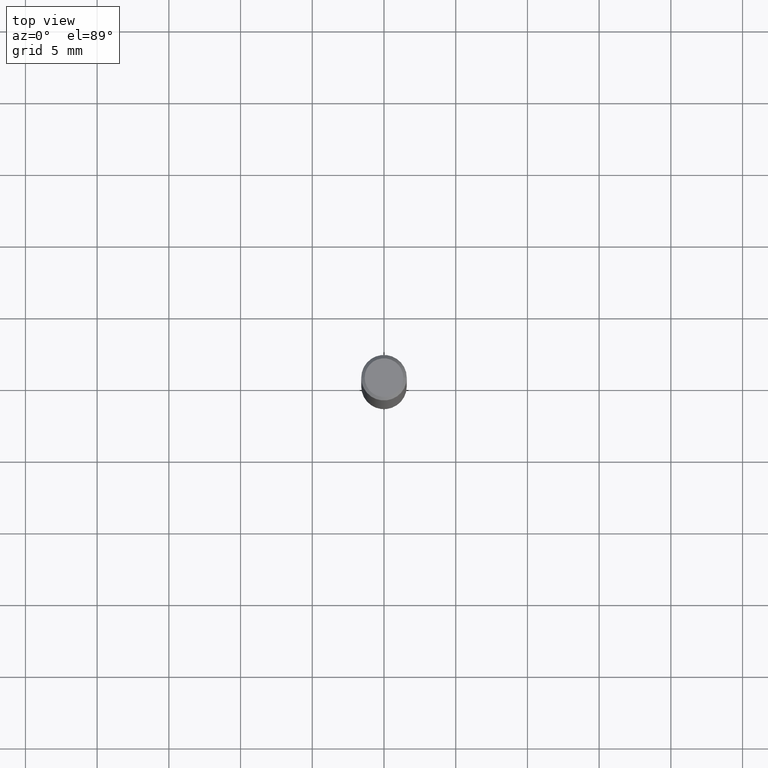
[diagram: clean part render]
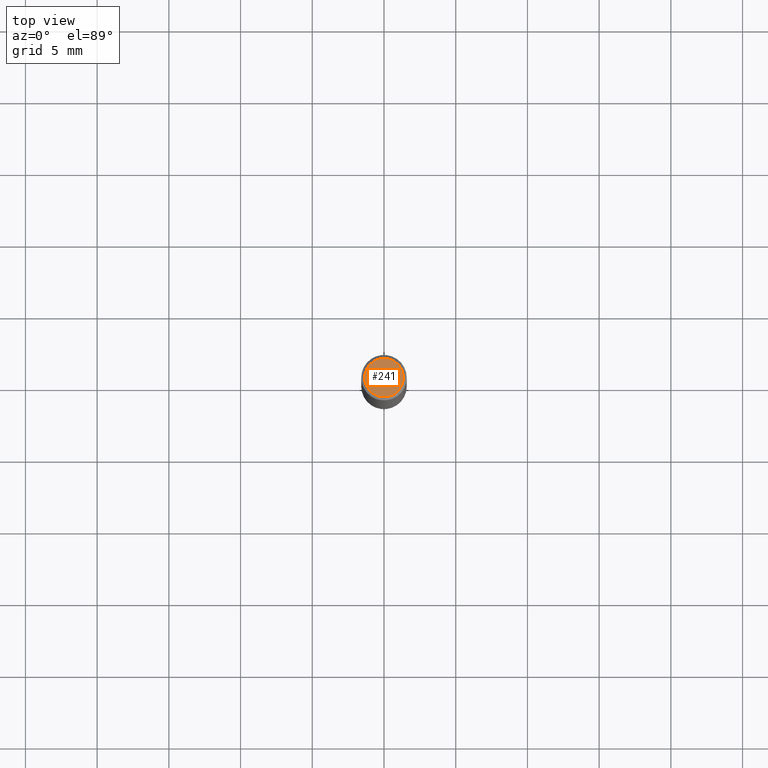
[diagram: same view with one face highlighted and labeled with its STEP entity id]
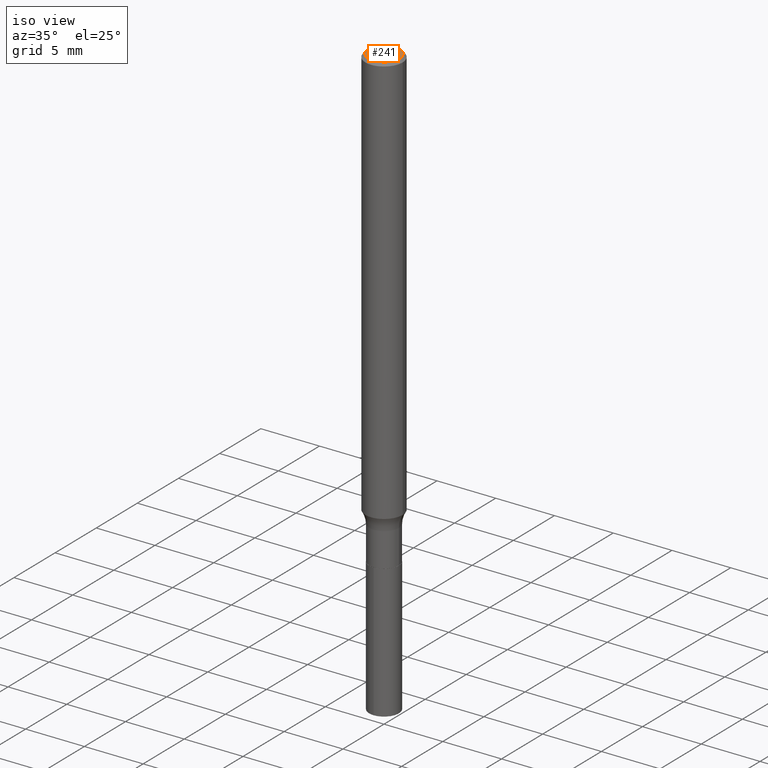
[diagram: same view with one face highlighted and labeled with its STEP entity id]
A machine part, top view. The second image highlights one B-rep face of the part: STEP entity #241.
A second angle (iso view) of the same face is appended — the face is thin or edge-on in the first view.
In plain terms, the highlighted planar face has unit normal (0, -0, -1).
Its self-contained STEP definition (entity closure, byte-faithful):
#39 = AXIS2_PLACEMENT_3D ( 'NONE', #452, #339, #489 ) ;
#85 = DIRECTION ( 'NONE',  ( -2.445468806185136597E-29, 3.491481338843145583E-15, 1.000000000000000000 ) ) ;
#129 = VERTEX_POINT ( 'NONE', #412 ) ;
#144 = CIRCLE ( 'NONE', #389, 0.05312499999999999861 ) ;
#148 = DIRECTION ( 'NONE',  ( -2.445468806185136597E-29, 3.491481338843145583E-15, 1.000000000000000000 ) ) ;
#155 = DIRECTION ( 'NONE',  ( 1.000000000000000000, -6.982962677686266711E-15, 4.874146000987428094E-29 ) ) ;
#165 = ORIENTED_EDGE ( 'NONE', *, *, #306, .T. ) ;
#191 = PLANE ( 'NONE',  #39 ) ;
#238 = EDGE_CURVE ( 'NONE', #484, #129, #144, .T. ) ;
#241 = ADVANCED_FACE ( 'NONE', ( #448 ), #191, .F. ) ;
#245 = AXIS2_PLACEMENT_3D ( 'NONE', #271, #85, #155 ) ;
#247 = ORIENTED_EDGE ( 'NONE', *, *, #238, .T. ) ;
#270 = CIRCLE ( 'NONE', #245, 0.05312499999999999861 ) ;
#271 = CARTESIAN_POINT ( 'NONE',  ( 4.773019151292986598E-46, -6.814606366898298634E-32, -1.951780836141093396E-17 ) ) ;
#287 = EDGE_LOOP ( 'NONE', ( #165, #247 ) ) ;
#300 = DIRECTION ( 'NONE',  ( 1.000000000000000000, -6.982962677686266711E-15, 4.874146000987428094E-29 ) ) ;
#306 = EDGE_CURVE ( 'NONE', #129, #484, #270, .T. ) ;
#339 = DIRECTION ( 'NONE',  ( 2.438088387897960049E-29, -3.491481338843145188E-15, -1.000000000000000000 ) ) ;
#389 = AXIS2_PLACEMENT_3D ( 'NONE', #488, #148, #300 ) ;
#412 = CARTESIAN_POINT ( 'NONE',  ( -0.05312499999999999861, 3.873362110279099094E-16, -1.951780836141358404E-17 ) ) ;
#446 = CARTESIAN_POINT ( 'NONE',  ( 0.05312499999999999861, -4.129888592719940335E-16, -1.951780836140819143E-17 ) ) ;
#448 = FACE_OUTER_BOUND ( 'NONE', #287, .T. ) ;
#452 = CARTESIAN_POINT ( 'NONE',  ( 2.386509575646493299E-46, -3.407303183449149317E-32, -9.758904180705466979E-18 ) ) ;
#484 = VERTEX_POINT ( 'NONE', #446 ) ;
#488 = CARTESIAN_POINT ( 'NONE',  ( 4.773019151292986598E-46, -6.814606366898298634E-32, -1.951780836141093396E-17 ) ) ;
#489 = DIRECTION ( 'NONE',  ( -1.000000000000000000, 6.982962677686265922E-15, -4.876176775795935793E-29 ) ) ;